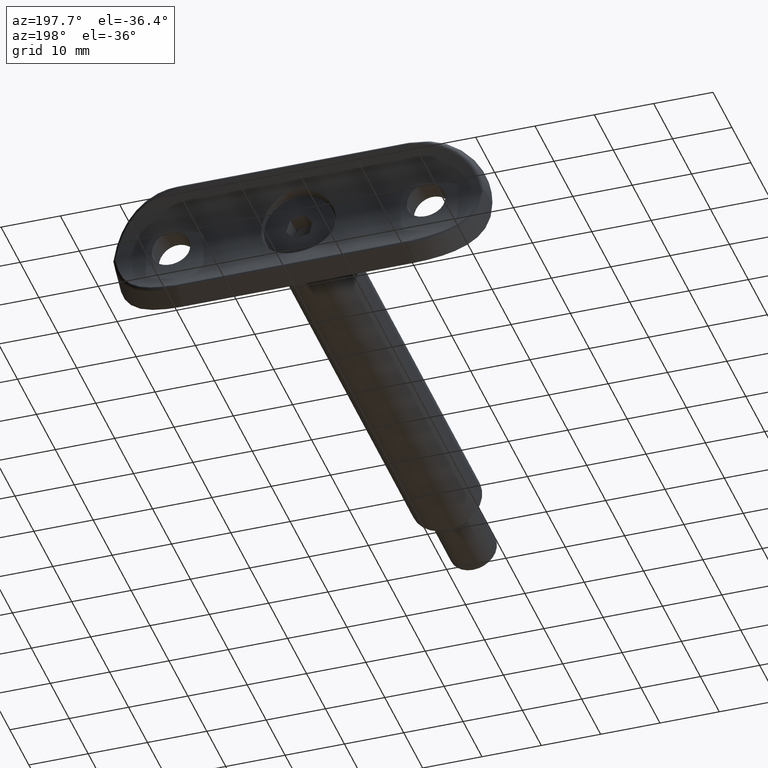
[diagram: clean part render]
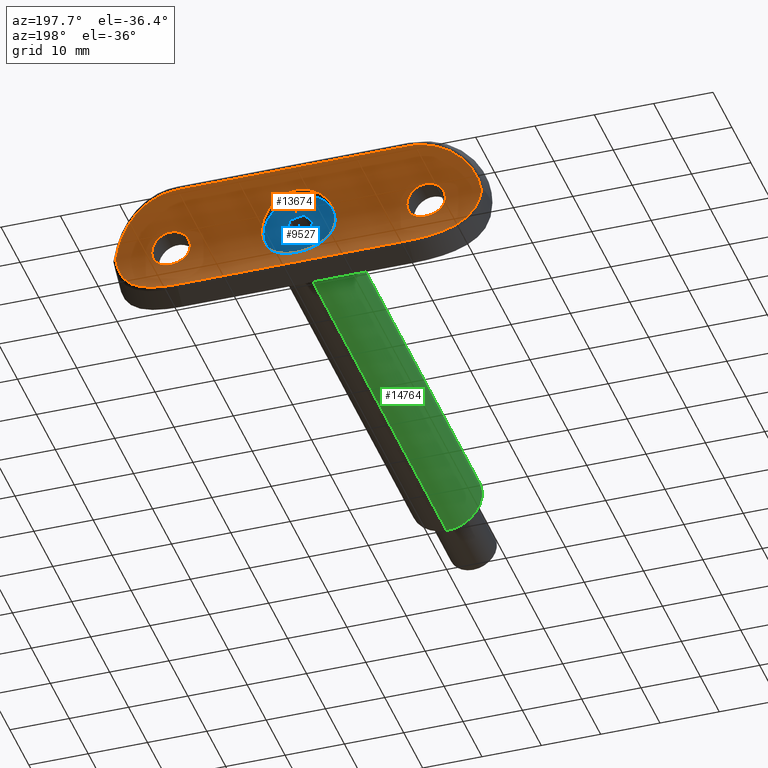
[diagram: same view with three faces highlighted in distinct colors, each labeled with its STEP entity id]
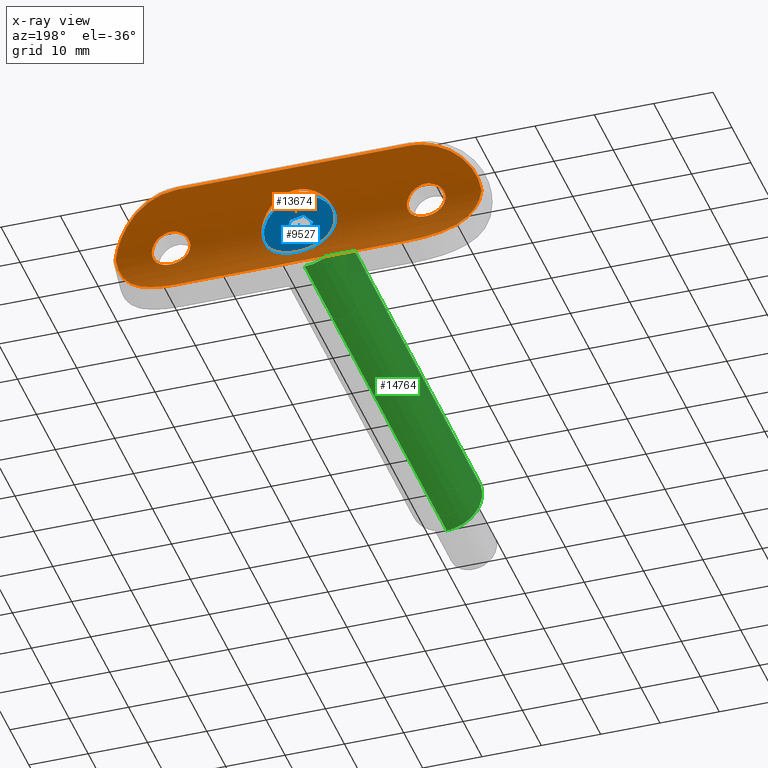
[diagram: x-ray of the same camera — body ghosted, the three highlighted faces saturated]
A machine part, auxiliary view with three faces highlighted in distinct colors.
The next image is the same camera in x-ray (body ghosted, the three faces saturated) — at least one of them is partly hidden behind the body in this view.
Their STEP definitions:

[orange] entity #13674 — the highlighted cylindrical surface (partial cylindrical patch) has radius 16.85 mm, axis along (1, -0, -0).
#64 = VERTEX_POINT ( 'NONE', #11238 ) ;
#89 = ORIENTED_EDGE ( 'NONE', *, *, #6962, .T. ) ;
#99 = CARTESIAN_POINT ( 'NONE',  ( -6.208474807560699000, 1.185235645790027500, 0.8279146384423928800 ) ) ;
#143 = CARTESIAN_POINT ( 'NONE',  ( -2.921070221033972300, 0.2549198398042866700, 22.94049291644473600 ) ) ;
#147 = CARTESIAN_POINT ( 'NONE',  ( -0.4237194425279188200, 0.004012198503904936700, -18.27060457569355400 ) ) ;
#149 = CARTESIAN_POINT ( 'NONE',  ( -6.250162533688483200, 1.202061850413230500, 0.4094160897852776600 ) ) ;
#193 = CARTESIAN_POINT ( 'NONE',  ( -3.146563842919865000, 0.2963476701418182900, -22.34064852401096600 ) ) ;
#225 = CARTESIAN_POINT ( 'NONE',  ( -8.378594580731062900, 2.226614987366911900, -24.83525098918113000 ) ) ;
#302 = VERTEX_POINT ( 'NONE', #7857 ) ;
#340 = CARTESIAN_POINT ( 'NONE',  ( -2.782308011602136600, 0.2268783624673865700, -5.611608479088758400 ) ) ;
#359 = CARTESIAN_POINT ( 'NONE',  ( 1.049670400899245700, 0.03156988072076803700, 24.58318820548387500 ) ) ;
#379 = CARTESIAN_POINT ( 'NONE',  ( -7.194680652232967200, 1.611533839192660400, 26.84993409781857600 ) ) ;
#403 = CARTESIAN_POINT ( 'NONE',  ( 2.146836638154671300, 0.1366263006822954500, 19.05066192131706500 ) ) ;
#422 = CARTESIAN_POINT ( 'NONE',  ( 4.518421924977071800, 0.6055062036309585300, -29.32728971149957100 ) ) ;
#479 = CARTESIAN_POINT ( 'NONE',  ( -5.088102286212711400, 0.7773996218996572800, 28.94991674319915400 ) ) ;
#500 = CARTESIAN_POINT ( 'NONE',  ( 7.656540450635650200E-016, 4.602082246478382500E-015, 6.250000000000000000 ) ) ;
#503 = CARTESIAN_POINT ( 'NONE',  ( 4.707216360516474300, 0.6681555376666309400, -4.131306735991997500 ) ) ;
#561 = CARTESIAN_POINT ( 'NONE',  ( 6.087749088909297300, 1.138103213971423800, -1.429792767508170500 ) ) ;
#610 = CARTESIAN_POINT ( 'NONE',  ( 6.036683979326183700, 1.118341300181738800, -1.631936828369501700 ) ) ;
#611 = EDGE_CURVE ( 'NONE', #10769, #302, #6934, .T. ) ;
#710 = CARTESIAN_POINT ( 'NONE',  ( 6.047193852532765300, 1.122271035008926400, 1.631705582103279100 ) ) ;
#719 = CARTESIAN_POINT ( 'NONE',  ( 7.997892245019760100E-016, 4.778640968277357800E-015, -6.250000000000000000 ) ) ;
#918 = B_SPLINE_CURVE_WITH_KNOTS ( 'NONE', 3,
 ( #4861, #1364, #3732, #8257, #11676, #12854, #1265, #11831, #8453, #14039, #6091, #3783, #13054, #6131, #12906, #5950, #5999, #7097, #7138, #99, #149, #1311, #6235, #4023, #11982, #1606, #6183, #9628, #12028, #13302, #3831, #14283, #9777, #2801, #3875, #7326, #340, #6279, #2751, #3922, #10931, #5008, #10786, #3973 ),
 .UNSPECIFIED., .F., .F.,
 ( 4, 2, 2, 2, 2, 2, 2, 2, 2, 2, 2, 2, 2, 2, 2, 2, 2, 2, 2, 2, 2, 4 ),
 ( 0.01971817941869424100, 0.02033424098713439200, 0.02095030255557454500, 0.02218242569245484900, 0.02341454882933515300, 0.02464667196621545700, 0.02587879510309576100, 0.02649485667153591100, 0.02711091823997606500, 0.02834304137685636500, 0.02957516451373667200, 0.03080728765061697300, 0.03142334921905712300, 0.03203941078749728000, 0.03265547235593743000, 0.03327153392437758000, 0.03450365706125788100, 0.03573578019813818100, 0.03696790333501848200, 0.03758396490345863200, 0.03820002647189878200, 0.03943214960877908200 ),
 .UNSPECIFIED. ) ;
#983 = CARTESIAN_POINT ( 'NONE',  ( 1.983235862894686500, 0.1161858091227481700, -18.91658847300226000 ) ) ;
#1015 = CARTESIAN_POINT ( 'NONE',  ( 5.088102286212706100, 0.7773996218996565000, 28.94991674319915000 ) ) ;
#1034 = CARTESIAN_POINT ( 'NONE',  ( 1.048385766230273600, 0.03149226902118848500, -18.41639367807252000 ) ) ;
#1081 = CARTESIAN_POINT ( 'NONE',  ( 2.449063118649708000, 0.1782317133173334200, -19.35284969890806300 ) ) ;
#1155 = CARTESIAN_POINT ( 'NONE',  ( -1.053215275238733800, 0.03180657498034843200, 24.58188754262609900 ) ) ;
#1261 = CARTESIAN_POINT ( 'NONE',  ( -2.585354106957339100, 0.1990918401650367000, -23.48082279583531200 ) ) ;
#1265 = CARTESIAN_POINT ( 'NONE',  ( -2.027231642494855100, 0.1180425330737968300, 5.926231317118172200 ) ) ;
#1297 = CARTESIAN_POINT ( 'NONE',  ( 1.334088218186776600E-014, 4.703196761685432300E-015, -30.84717079002204800 ) ) ;
#1304 = CARTESIAN_POINT ( 'NONE',  ( -0.8472009723319841000, 0.02000263995801098200, 24.64491786416992600 ) ) ;
#1311 = CARTESIAN_POINT ( 'NONE',  ( -6.249836487234472500, 1.201931623562961600, -0.4143635057904625500 ) ) ;
#1361 = CARTESIAN_POINT ( 'NONE',  ( -3.082926604103467700, 0.2842220926113287500, -20.44946489675437500 ) ) ;
#1364 = CARTESIAN_POINT ( 'NONE',  ( -0.2052994920901139700, 3.713974775914088400E-015, 6.249999999999999100 ) ) ;
#1399 = DIRECTION ( 'NONE',  ( -0.0000000000000000000, -0.0000000000000000000, -1.000000000000000000 ) ) ;
#1403 = CARTESIAN_POINT ( 'NONE',  ( -9.390755499543006500, 2.858910488688067200, -20.88376216912642700 ) ) ;
#1418 = CARTESIAN_POINT ( 'NONE',  ( -0.2123273452876281700, 1.843408391021373700E-015, -18.24999999999999600 ) ) ;
#1423 = CARTESIAN_POINT ( 'NONE',  ( -9.441128890499024700, 2.893367695859272900, -19.50000000000000000 ) ) ;
#1434 = CARTESIAN_POINT ( 'NONE',  ( 2.582499226653275100, 0.1986432690838975700, 23.48465118164262900 ) ) ;
#1459 = CARTESIAN_POINT ( 'NONE',  ( -2.821407994228275500, 0.2374609004004292800, -23.12707459477639900 ) ) ;
#1480 = CARTESIAN_POINT ( 'NONE',  ( 2.920699140044152200, 0.2548558248108060400, 22.94110877731811000 ) ) ;
#1493 = CARTESIAN_POINT ( 'NONE',  ( -3.323786737820734900, 0.3196594979452152000, -29.95339368198925100 ) ) ;
#1543 = CARTESIAN_POINT ( 'NONE',  ( 1.704901066415767800, 0.08317899172538814600, -30.50770133067765100 ) ) ;
#1575 = CARTESIAN_POINT ( 'NONE',  ( 3.145579254952806500, 0.2961597375527262300, 20.65555736896794800 ) ) ;
#1594 = CARTESIAN_POINT ( 'NONE',  ( 0.3456293382778021800, 2.601661697491581100E-015, -30.79959470430785700 ) ) ;
#1606 = CARTESIAN_POINT ( 'NONE',  ( -5.916111327363486400, 1.072602829246070800, -2.025909838344072800 ) ) ;
#1627 = CARTESIAN_POINT ( 'NONE',  ( 3.250082532967421700, 0.3164140751010345900, 21.28873162966797100 ) ) ;
#1641 = CARTESIAN_POINT ( 'NONE',  ( 3.980098594385254500E-016, 4.275631695863335800E-015, 18.25000000000000000 ) ) ;
#1670 = DIRECTION ( 'NONE',  ( -1.000000000000000000, 0.0000000000000000000, 0.0000000000000000000 ) ) ;
#1673 = CARTESIAN_POINT ( 'NONE',  ( 2.784900210101034700, 0.2273498565155063200, -5.610203054590016300 ) ) ;
#1725 = CARTESIAN_POINT ( 'NONE',  ( 5.927818033916425500, 1.076224761074669600, 2.023264345631290000 ) ) ;
#1784 = CARTESIAN_POINT ( 'NONE',  ( 5.916380749740803000, 1.072703725355302700, -2.025144464510761000 ) ) ;
#1836 = CARTESIAN_POINT ( 'NONE',  ( 4.129335621662694900, 0.5130105781612956900, -4.696008726409268700 ) ) ;
#1983 = VERTEX_POINT ( 'NONE', #2278 ) ;
#2030 = CARTESIAN_POINT ( 'NONE',  ( -2.446630481080480600, 0.1778860398142903500, 19.35026369552961300 ) ) ;
#2074 = CARTESIAN_POINT ( 'NONE',  ( 3.980098594385254500E-016, 4.275631695863335800E-015, 18.25000000000000000 ) ) ;
#2135 = CARTESIAN_POINT ( 'NONE',  ( -0.2123273452876290900, 5.106655759877770000E-015, 18.25000000000000400 ) ) ;
#2193 = VERTEX_POINT ( 'NONE', #9243 ) ;
#2197 = CARTESIAN_POINT ( 'NONE',  ( 6.573486520757321600, 1.328437660848534000, 27.63102504643977000 ) ) ;
#2206 = EDGE_CURVE ( 'NONE', #1983, #12257, #3295, .T. ) ;
#2213 = CARTESIAN_POINT ( 'NONE',  ( 2.920699140044152700, 0.2548558248108046000, -22.94110877731811000 ) ) ;
#2261 = CARTESIAN_POINT ( 'NONE',  ( 2.584018455900052300, 0.1988880537411806000, -19.51756294124301400 ) ) ;
#2278 = CARTESIAN_POINT ( 'NONE',  ( -3.042043628894920000E-015, 3.755531606105718100E-015, 30.84717079002204800 ) ) ;
#2284 = CARTESIAN_POINT ( 'NONE',  ( -3.082926604103469500, 0.2842220926113293600, 20.44946489675438200 ) ) ;
#2334 = CARTESIAN_POINT ( 'NONE',  ( -0.2152229943715045200, 3.442977172351917300E-015, 24.74999999999999600 ) ) ;
#2349 = VERTEX_POINT ( 'NONE', #1423 ) ;
#2486 = CARTESIAN_POINT ( 'NONE',  ( -2.146901082311376600, 0.1366460470933101900, -19.05088125390369700 ) ) ;
#2536 = CARTESIAN_POINT ( 'NONE',  ( -2.448882033043938500, 0.1782218465160917100, -23.64711643842226300 ) ) ;
#2573 = CARTESIAN_POINT ( 'NONE',  ( -9.441128890499028300, 2.893367695859272000, 31.50000000000000000 ) ) ;
#2581 = CARTESIAN_POINT ( 'NONE',  ( -8.937682158469106900, 2.565229096247158700, 23.23577741699182700 ) ) ;
#2587 = CARTESIAN_POINT ( 'NONE',  ( -1.983641479765679400, 0.1162216720010653000, -18.91678980406262400 ) ) ;
#2642 = EDGE_LOOP ( 'NONE', ( #5595, #5018 ) ) ;
#2661 = CARTESIAN_POINT ( 'NONE',  ( 1.983235862894689100, 0.1161858091227483700, 18.91658847300226000 ) ) ;
#2697 = EDGE_CURVE ( 'NONE', #2193, #1983, #10996, .T. ) ;
#2722 = ORIENTED_EDGE ( 'NONE', *, *, #5205, .T. ) ;
#2745 = CARTESIAN_POINT ( 'NONE',  ( -1.704901066415757800, 0.08317899172538766000, 30.50770133067765500 ) ) ;
#2751 = CARTESIAN_POINT ( 'NONE',  ( -2.017783046553296000, 0.1200852643657183100, -5.918882374071625200 ) ) ;
#2785 = CARTESIAN_POINT ( 'NONE',  ( 9.026933551425223400, 2.621681504256944400, -22.90300639677785800 ) ) ;
#2793 = B_SPLINE_CURVE_WITH_KNOTS ( 'NONE', 3,
 ( #9709, #4996, #14469, #5200, #10864, #2785, #14267, #10820, #11914, #6223, #12016, #3960, #8642, #9659, #7362, #8591, #422, #8539, #13188, #1543, #11966, #7317, #1594, #9765 ),
 .UNSPECIFIED., .F., .F.,
 ( 4, 2, 2, 2, 2, 2, 2, 2, 2, 2, 2, 4 ),
 ( 0.0000000000000000000, 0.002062967759200297400, 0.003094451638800451600, 0.004125935518400606100, 0.006188903277600904900, 0.007220387157201056800, 0.008251871036801208800, 0.01031483879600151100, 0.01237780655520181000, 0.01444077431440211200, 0.01547225819400226300, 0.01650374207360241400 ),
 .UNSPECIFIED. ) ;
#2801 = CARTESIAN_POINT ( 'NONE',  ( -4.131741836723522400, 0.5117185280038941700, -4.706959048184010000 ) ) ;
#2804 = ORIENTED_EDGE ( 'NONE', *, *, #9878, .T. ) ;
#2811 = ORIENTED_EDGE ( 'NONE', *, *, #5395, .F. ) ;
#2822 = CARTESIAN_POINT ( 'NONE',  ( 3.136203337984735800, 0.2934183955299931600, 5.410060750528642400 ) ) ;
#2926 = CARTESIAN_POINT ( 'NONE',  ( 4.130855323560408200, 0.5114908614198394600, 4.707754619127245900 ) ) ;
#2972 = CARTESIAN_POINT ( 'NONE',  ( 2.218277009078186300, 0.1455645454800997000, -5.846677174642287900 ) ) ;
#3020 = CARTESIAN_POINT ( 'NONE',  ( 6.208666647140428400, 1.185311354801357400, 0.8267255055114216500 ) ) ;
#3253 = CARTESIAN_POINT ( 'NONE',  ( 3.229188161827141600, 0.3122656646793284800, -21.92502909074561400 ) ) ;
#3295 = B_SPLINE_CURVE_WITH_KNOTS ( 'NONE', 3,
 ( #13890, #6955, #5590, #8016, #8108, #13681, #10401, #13735, #1015, #9194, #2197, #10348, #3396, #11484, #13842, #6907, #3445, #13938, #3543, #5955, #8261, #11635, #9395, #9538 ),
 .UNSPECIFIED., .F., .F.,
 ( 4, 2, 2, 2, 2, 2, 2, 2, 2, 2, 2, 4 ),
 ( 0.0000000000000000000, 0.001043312271240549400, 0.002086624542481098700, 0.004173249084962197400, 0.006259873627443297800, 0.008346498169924398300, 0.009389810441164946800, 0.01043312271240549700, 0.01251974725488659600, 0.01356305952612714400, 0.01460637179736769400, 0.01669299633984880300 ),
 .UNSPECIFIED. ) ;
#3312 = CARTESIAN_POINT ( 'NONE',  ( 3.145563945726086400, 0.2961563196495979300, -22.34482742368648200 ) ) ;
#3333 = CARTESIAN_POINT ( 'NONE',  ( -1.983641479765678100, 0.1162216720010650200, 18.91678980406262800 ) ) ;
#3385 = CARTESIAN_POINT ( 'NONE',  ( -1.048835084218625600, 0.03153038519526391700, 18.41661149994736500 ) ) ;
#3396 = CARTESIAN_POINT ( 'NONE',  ( 7.390793985087869400, 1.706034407769336600, 26.57572169385642300 ) ) ;
#3412 = CARTESIAN_POINT ( 'NONE',  ( 0.2152782032683116500, 3.495757912877700100E-015, -24.74999999999998900 ) ) ;
#3433 = CARTESIAN_POINT ( 'NONE',  ( -0.4276890220517249900, 0.004120897769774846400, 24.72882950313450900 ) ) ;
#3445 = CARTESIAN_POINT ( 'NONE',  ( 8.631763027774574900, 2.376833947390418100, 24.21320611330039400 ) ) ;
#3522 = EDGE_LOOP ( 'NONE', ( #2722, #9786 ) ) ;
#3533 = CARTESIAN_POINT ( 'NONE',  ( -8.631763027774578500, 2.376833947390416800, 24.21320611330039400 ) ) ;
#3543 = CARTESIAN_POINT ( 'NONE',  ( 9.026933551425221600, 2.621681504256943000, 22.90300639677786200 ) ) ;
#3585 = CARTESIAN_POINT ( 'NONE',  ( -1.639419273092649300, 0.07536514744673933300, 24.33795303212947700 ) ) ;
#3671 = CARTESIAN_POINT ( 'NONE',  ( -9.026933551425226900, 2.621681504256942100, -22.90300639677786900 ) ) ;
#3716 = CARTESIAN_POINT ( 'NONE',  ( -1.367225302750650000, 0.05211738540097970300, -30.59434416446330100 ) ) ;
#3728 = CARTESIAN_POINT ( 'NONE',  ( -0.2152229943715044900, 3.442977172351917300E-015, -24.74999999999999300 ) ) ;
#3732 = CARTESIAN_POINT ( 'NONE',  ( -0.4106866204810056300, 0.003750759248861804600, 6.239909560735750200 ) ) ;
#3780 = CARTESIAN_POINT ( 'NONE',  ( -3.228493774346178600, 0.3121308101101246100, -21.07077233454705800 ) ) ;
#3783 = CARTESIAN_POINT ( 'NONE',  ( -4.711075227352902000, 0.6692139400214722800, 4.127382108038009500 ) ) ;
#3803 = CARTESIAN_POINT ( 'NONE',  ( 3.145563945726088200, 0.2961563196495985400, 22.34482742368648200 ) ) ;
#3823 = VERTEX_POINT ( 'NONE', #9249 ) ;
#3825 = CARTESIAN_POINT ( 'NONE',  ( -8.378594580731057600, 2.226614987366916800, 24.83525098918111600 ) ) ;
#3831 = CARTESIAN_POINT ( 'NONE',  ( -5.302508391472747100, 0.8556213652968638300, -3.314724427457414800 ) ) ;
#3868 = CARTESIAN_POINT ( 'NONE',  ( -7.752703595076257100, 1.888077778722113500, 26.01314792266511600 ) ) ;
#3875 = CARTESIAN_POINT ( 'NONE',  ( -3.813043210740915800, 0.4334959478249322300, -4.968636500825002000 ) ) ;
#3893 = CARTESIAN_POINT ( 'NONE',  ( 2.820078761738545200, 0.2372296406204138200, 23.12950862104238000 ) ) ;
#3916 = LINE ( 'NONE', #7357, #14463 ) ;
#3922 = CARTESIAN_POINT ( 'NONE',  ( -1.625151884774484800, 0.07739206813785574900, -6.038501331660661700 ) ) ;
#3944 = CARTESIAN_POINT ( 'NONE',  ( 3.229188161827143000, 0.3122656646793293100, 21.92502909074561400 ) ) ;
#3960 = CARTESIAN_POINT ( 'NONE',  ( 7.390793985087874800, 1.706034407769338100, -26.57572169385642600 ) ) ;
#3973 = CARTESIAN_POINT ( 'NONE',  ( 7.997892245019760100E-016, 4.778640968277357800E-015, -6.250000000000000000 ) ) ;
#3990 = CARTESIAN_POINT ( 'NONE',  ( 1.636188232889933800, 0.07468825343181452500, 6.046225584865449100 ) ) ;
#4023 = CARTESIAN_POINT ( 'NONE',  ( -6.087418667224692800, 1.137974736567361100, -1.431290071125539400 ) ) ;
#4085 = CARTESIAN_POINT ( 'NONE',  ( 1.027230917890327800, 0.03010937391894012700, 6.168481221537653900 ) ) ;
#4132 = DIRECTION ( 'NONE',  ( -0.0000000000000000000, -0.0000000000000000000, -1.000000000000000000 ) ) ;
#4190 = CARTESIAN_POINT ( 'NONE',  ( 5.610519621648258200, 0.9605984534829457000, 2.784725270224604800 ) ) ;
#4440 = CARTESIAN_POINT ( 'NONE',  ( -2.819027516698466900, 0.2370592656101540600, 19.86893045365901900 ) ) ;
#4471 = CARTESIAN_POINT ( 'NONE',  ( 3.249916974005196300, 0.3163815312802751900, -21.71380004086898200 ) ) ;
#4528 = CARTESIAN_POINT ( 'NONE',  ( 1.631655667721750200, 0.07825406689369092400, -18.68132311399693900 ) ) ;
#4632 = CARTESIAN_POINT ( 'NONE',  ( 1.334088218186776600E-014, 4.703196761685432300E-015, -30.84717079002204800 ) ) ;
#4756 = CARTESIAN_POINT ( 'NONE',  ( 3.980098594322145600E-016, 4.466214108995553400E-015, -18.25000000000000000 ) ) ;
#4845 = CARTESIAN_POINT ( 'NONE',  ( -9.178189490185198800, 2.718778742075953900, -22.23567650817570800 ) ) ;
#4861 = CARTESIAN_POINT ( 'NONE',  ( 7.656540450635650200E-016, 4.602082246478382500E-015, 6.250000000000000000 ) ) ;
#4901 = CARTESIAN_POINT ( 'NONE',  ( -4.518421924977055000, 0.6055062036309523100, -29.32728971149955700 ) ) ;
#4907 = CARTESIAN_POINT ( 'NONE',  ( -9.390755499543004700, 2.858910488688068100, 20.88376216912642400 ) ) ;
#4932 = CARTESIAN_POINT ( 'NONE',  ( 1.441339477771321300, 0.06060288391372337800, 18.57933549114534000 ) ) ;
#4956 = CARTESIAN_POINT ( 'NONE',  ( -1.367225302750667100, 0.05211738540098165300, 30.59434416446331500 ) ) ;
#4996 = CARTESIAN_POINT ( 'NONE',  ( 9.441128890499026500, 2.893367695859275100, -20.19690007560872000 ) ) ;
#5002 = CARTESIAN_POINT ( 'NONE',  ( -6.112227243406868700, 1.138286346994826300, 28.10283433195984100 ) ) ;
#5008 = CARTESIAN_POINT ( 'NONE',  ( -0.8258026788817315300, 0.01545375570324189300, -6.208665078655594800 ) ) ;
#5018 = ORIENTED_EDGE ( 'NONE', *, *, #10217, .T. ) ;
#5046 = CARTESIAN_POINT ( 'NONE',  ( -6.112227243406862500, 1.138286346994821700, -28.10283433195984400 ) ) ;
#5128 = CARTESIAN_POINT ( 'NONE',  ( 3.980098594385254500E-016, 4.275631695863335800E-015, 18.25000000000000000 ) ) ;
#5184 = CARTESIAN_POINT ( 'NONE',  ( 3.312521721112802600, 0.3279095474289453500, 5.303868707929096300 ) ) ;
#5200 = CARTESIAN_POINT ( 'NONE',  ( 9.240722277303365900, 2.759749986775101400, -21.89952579968479500 ) ) ;
#5205 = EDGE_CURVE ( 'NONE', #64, #3823, #10070, .T. ) ;
#5234 = CARTESIAN_POINT ( 'NONE',  ( 6.249771679224513900, 1.201905738477076800, -0.4153386595776358800 ) ) ;
#5378 = CARTESIAN_POINT ( 'NONE',  ( 3.818999154492371600, 0.4348594961504608800, 4.964175576383338400 ) ) ;
#5395 = EDGE_CURVE ( 'NONE', #302, #10769, #12569, .T. ) ;
#5418 = EDGE_CURVE ( 'NONE', #10822, #6594, #14167, .T. ) ;
#5590 = CARTESIAN_POINT ( 'NONE',  ( 0.6882995487741748700, 0.01062919543943042900, 30.74005674687350300 ) ) ;
#5595 = ORIENTED_EDGE ( 'NONE', *, *, #5418, .T. ) ;
#5607 = CARTESIAN_POINT ( 'NONE',  ( 0.8429591315247496600, 0.01981086720713737300, -24.64593740877975500 ) ) ;
#5756 = CARTESIAN_POINT ( 'NONE',  ( 2.582499226653275100, 0.1986432690838977100, -23.48465118164262900 ) ) ;
#5891 = CARTESIAN_POINT ( 'NONE',  ( -2.821407994228280400, 0.2374609004004334100, 23.12707459477639600 ) ) ;
#5941 = CARTESIAN_POINT ( 'NONE',  ( -3.250112212707315900, 0.3164199092273574700, 21.71289879331213900 ) ) ;
#5950 = CARTESIAN_POINT ( 'NONE',  ( -5.603164478941546500, 0.9585722609550342300, 2.776450904045090000 ) ) ;
#5955 = CARTESIAN_POINT ( 'NONE',  ( 9.178189490185197000, 2.718778742075956600, 22.23567650817570800 ) ) ;
#5996 = CARTESIAN_POINT ( 'NONE',  ( -0.4276890220517239900, 0.004120897769774937500, -24.72882950313450200 ) ) ;
#5999 = CARTESIAN_POINT ( 'NONE',  ( -5.691955210544504600, 0.9902659451496679300, 2.589622749943053300 ) ) ;
#6016 = CARTESIAN_POINT ( 'NONE',  ( 9.441128890499024700, 2.893367695859273800, -19.50000000000000400 ) ) ;
#6032 = CARTESIAN_POINT ( 'NONE',  ( -0.3456293382777763700, 4.388760044040271000E-015, -30.79959470430785700 ) ) ;
#6041 = CARTESIAN_POINT ( 'NONE',  ( -9.441128890499028300, 2.893367695859272400, 19.50000000000000000 ) ) ;
#6086 = CARTESIAN_POINT ( 'NONE',  ( -9.178189490185198800, 2.718778742075953500, 22.23567650817570400 ) ) ;
#6091 = CARTESIAN_POINT ( 'NONE',  ( -4.133501323962614800, 0.5121227167856059500, 4.705707137968723000 ) ) ;
#6114 = DIRECTION ( 'NONE',  ( 0.0000000000000000000, 0.0000000000000000000, 1.000000000000000000 ) ) ;
#6131 = CARTESIAN_POINT ( 'NONE',  ( -5.305557136130755900, 0.8566405411699651300, 3.309748677244134900 ) ) ;
#6134 = EDGE_CURVE ( 'NONE', #10669, #2349, #6549, .T. ) ;
#6183 = CARTESIAN_POINT ( 'NONE',  ( -5.846723729835764200, 1.046668245745590300, -2.218074489118605700 ) ) ;
#6222 = CARTESIAN_POINT ( 'NONE',  ( -6.573486520757317200, 1.328437660848532700, -27.63102504643977400 ) ) ;
#6223 = CARTESIAN_POINT ( 'NONE',  ( 7.919200436628651500, 1.975888310944755100, -25.72421893530745900 ) ) ;
#6235 = CARTESIAN_POINT ( 'NONE',  ( -6.209356294297511300, 1.185581400966303700, -0.8230574716146608100 ) ) ;
#6279 = CARTESIAN_POINT ( 'NONE',  ( -2.213249965840534000, 0.1448884379476727800, -5.848610645889196200 ) ) ;
#6349 = CARTESIAN_POINT ( 'NONE',  ( 2.023216522064035700, 0.1207291602827784400, -5.917066336990328200 ) ) ;
#6494 = VERTEX_POINT ( 'NONE', #6016 ) ;
#6502 = CARTESIAN_POINT ( 'NONE',  ( 3.650108747968118500, 0.3991914512522775100, -5.077469435536840200 ) ) ;
#6547 = CARTESIAN_POINT ( 'NONE',  ( 2.774927731756537100, 0.2290511135437955600, 5.603954388208887100 ) ) ;
#6549 = B_SPLINE_CURVE_WITH_KNOTS ( 'NONE', 3,
 ( #1297, #6032, #10617, #3716, #13137, #12943, #1493, #4901, #14119, #5046, #6222, #8296, #8400, #7128, #14219, #225, #14266, #10819, #3671, #4845, #12989, #1403, #7171, #10721 ),
 .UNSPECIFIED., .F., .F.,
 ( 4, 2, 2, 2, 2, 2, 2, 2, 2, 2, 2, 4 ),
 ( 0.0000000000000000000, 0.001043312271240549800, 0.002086624542481099600, 0.004173249084962200900, 0.006259873627443301300, 0.008346498169924403500, 0.009389810441164952000, 0.01043312271240550400, 0.01251974725488660100, 0.01356305952612715300, 0.01460637179736770100, 0.01669299633984881400 ),
 .UNSPECIFIED. ) ;
#6594 = VERTEX_POINT ( 'NONE', #500 ) ;
#6630 = LINE ( 'NONE', #2573, #12223 ) ;
#6657 = FACE_BOUND ( 'NONE', #8600, .T. ) ;
#6682 = EDGE_LOOP ( 'NONE', ( #8680, #14229, #12799, #8739, #89, #2804 ) ) ;
#6876 = CARTESIAN_POINT ( 'NONE',  ( 2.149165446315895300, 0.1369404172337502500, -23.94710189695196300 ) ) ;
#6907 = CARTESIAN_POINT ( 'NONE',  ( 8.378594580731055800, 2.226614987366914100, 24.83525098918111600 ) ) ;
#6934 = B_SPLINE_CURVE_WITH_KNOTS ( 'NONE', 3,
 ( #2074, #2135, #10338, #10234, #3385, #11374, #14958, #3333, #9029, #2030, #11323, #4440, #13884, #2284, #14081, #9284, #7136, #5941, #10439, #10539, #9383, #143, #5891, #8152, #12700, #8306, #3585, #1155, #1304, #3433, #2334, #8249 ),
 .UNSPECIFIED., .F., .F.,
 ( 4, 2, 2, 2, 2, 2, 2, 2, 2, 2, 2, 2, 2, 2, 2, 4 ),
 ( 0.01018487875220696600, 0.01082127042733996500, 0.01145766210247296500, 0.01209405377760596300, 0.01273044545273896100, 0.01336683712787196100, 0.01400322880300495900, 0.01463962047813795900, 0.01527601215327095900, 0.01591240382840395900, 0.01654879550353696000, 0.01718518717866995800, 0.01782157885380295700, 0.01909436220406896700, 0.01973075387920197200, 0.02036714555433497300 ),
 .UNSPECIFIED. ) ;
#6955 = CARTESIAN_POINT ( 'NONE',  ( 0.3456293382777864700, 3.735415297391464500E-015, 30.79959470430786400 ) ) ;
#6962 = EDGE_CURVE ( 'NONE', #12257, #6494, #3916, .T. ) ;
#6973 = CARTESIAN_POINT ( 'NONE',  ( 1.443049595592233800, 0.06074726224350655800, -24.41983994863073800 ) ) ;
#7097 = CARTESIAN_POINT ( 'NONE',  ( -5.928084701011513000, 1.076338870911110600, 2.021957517135963800 ) ) ;
#7128 = CARTESIAN_POINT ( 'NONE',  ( -7.752703595076255300, 1.888077778722110600, -26.01314792266513000 ) ) ;
#7136 = CARTESIAN_POINT ( 'NONE',  ( -3.249886891623715400, 0.3163756180069491900, 21.28368892068283100 ) ) ;
#7138 = CARTESIAN_POINT ( 'NONE',  ( -6.047110882185940300, 1.122239457329228000, 1.631886044799525600 ) ) ;
#7160 = CARTESIAN_POINT ( 'NONE',  ( -1.040937877836706200E-016, 3.954882813776429800E-015, 24.74999999999999600 ) ) ;
#7171 = CARTESIAN_POINT ( 'NONE',  ( -9.441128890499028300, 2.893367695859272400, -20.19690007560871700 ) ) ;
#7181 = CARTESIAN_POINT ( 'NONE',  ( -2.446630481080478000, 0.1778860398142866900, -19.35026369552961300 ) ) ;
#7273 = CARTESIAN_POINT ( 'NONE',  ( -2.001016787975085500, 0.1165224218861982000, -24.09556557649313300 ) ) ;
#7299 = CARTESIAN_POINT ( 'NONE',  ( 0.2123818113939571500, 5.179394714223232200E-015, 18.25000000000000000 ) ) ;
#7317 = CARTESIAN_POINT ( 'NONE',  ( 0.6882995487741899700, 0.01062919543943080700, -30.74005674687349900 ) ) ;
#7326 = CARTESIAN_POINT ( 'NONE',  ( -3.139651692816615800, 0.2915130199087465600, -5.419338931281346000 ) ) ;
#7344 = CARTESIAN_POINT ( 'NONE',  ( 1.443049595592232400, 0.06074726224350642000, 24.41983994863073800 ) ) ;
#7357 = CARTESIAN_POINT ( 'NONE',  ( 9.441128890499026500, 2.893367695859272000, 31.50000000000000000 ) ) ;
#7362 = CARTESIAN_POINT ( 'NONE',  ( 6.112227243406869600, 1.138286346994830100, -28.10283433195983700 ) ) ;
#7368 = CARTESIAN_POINT ( 'NONE',  ( -6.573486520757322500, 1.328437660848532400, 27.63102504643977000 ) ) ;
#7395 = CARTESIAN_POINT ( 'NONE',  ( 3.084022282978944300, 0.2844274000123507800, 20.45271370822382600 ) ) ;
#7446 = CARTESIAN_POINT ( 'NONE',  ( 0.8429591315247494400, 0.01981086720713737300, 24.64593740877976600 ) ) ;
#7545 = CARTESIAN_POINT ( 'NONE',  ( 5.612455961069239100, 0.9613075566344072600, -2.779941545350277800 ) ) ;
#7602 = CARTESIAN_POINT ( 'NONE',  ( 0.4169718030340924800, 3.520057170552058600E-015, -6.250000000000000900 ) ) ;
#7643 = CARTESIAN_POINT ( 'NONE',  ( 0.4105989775874721600, 0.003752397472598141800, 6.239905014505976200 ) ) ;
#7857 = CARTESIAN_POINT ( 'NONE',  ( -1.040937877836706200E-016, 3.954882813776429800E-015, 24.74999999999999600 ) ) ;
#7930 = CARTESIAN_POINT ( 'NONE',  ( 1.441339477771322200, 0.06060288391372346100, -18.57933549114534300 ) ) ;
#8016 = CARTESIAN_POINT ( 'NONE',  ( 1.367225302750659300, 0.05211738540098079200, 30.59434416446331200 ) ) ;
#8033 = CARTESIAN_POINT ( 'NONE',  ( 2.448156607284309900, 0.1781134253215617100, -23.64796392798255600 ) ) ;
#8045 = EDGE_CURVE ( 'NONE', #2349, #2193, #6630, .T. ) ;
#8076 = CARTESIAN_POINT ( 'NONE',  ( 3.145579254952804800, 0.2961597375527259500, -20.65555736896794800 ) ) ;
#8108 = CARTESIAN_POINT ( 'NONE',  ( 1.704901066415754000, 0.08317899172538735500, 30.50770133067765900 ) ) ;
#8124 = CARTESIAN_POINT ( 'NONE',  ( 0.2123818113939569800, 1.923823581451330000E-015, -18.25000000000000000 ) ) ;
#8152 = CARTESIAN_POINT ( 'NONE',  ( -2.585354106957344000, 0.1990918401650410600, 23.48082279583530900 ) ) ;
#8249 = CARTESIAN_POINT ( 'NONE',  ( -1.040937877836706200E-016, 3.954882813776429800E-015, 24.74999999999999600 ) ) ;
#8253 = CARTESIAN_POINT ( 'NONE',  ( -3.249886891623713600, 0.3163756180069488600, -21.28368892068283500 ) ) ;
#8257 = CARTESIAN_POINT ( 'NONE',  ( -0.8216389274751880700, 0.01878832482319965600, 6.199197068916340900 ) ) ;
#8261 = CARTESIAN_POINT ( 'NONE',  ( 9.240722277303360600, 2.759749986775100500, 21.89952579968479500 ) ) ;
#8296 = CARTESIAN_POINT ( 'NONE',  ( -7.194680652232960900, 1.611533839192661000, -26.84993409781857900 ) ) ;
#8306 = CARTESIAN_POINT ( 'NONE',  ( -2.001016787975084600, 0.1165224218861978200, 24.09556557649312900 ) ) ;
#8309 = CARTESIAN_POINT ( 'NONE',  ( -1.629768385759161400, 0.07805838134314960200, -18.68013059780745200 ) ) ;
#8400 = CARTESIAN_POINT ( 'NONE',  ( -7.390793985087868600, 1.706034407769333000, -26.57572169385642600 ) ) ;
#8431 = CARTESIAN_POINT ( 'NONE',  ( 1.629541343782515300, 0.07804136284574649000, 24.31995501582956700 ) ) ;
#8449 = CARTESIAN_POINT ( 'NONE',  ( -2.694734062044984700, 0.2035948080676313600, 30.20712680308378100 ) ) ;
#8452 = CARTESIAN_POINT ( 'NONE',  ( -2.819027516698463700, 0.2370592656101573300, -19.86893045365900800 ) ) ;
#8453 = CARTESIAN_POINT ( 'NONE',  ( -3.147389272226401000, 0.2929814448623007100, 5.414878545323187400 ) ) ;
#8498 = CARTESIAN_POINT ( 'NONE',  ( -7.919200436628655000, 1.975888310944755600, 25.72421893530746200 ) ) ;
#8523 = CARTESIAN_POINT ( 'NONE',  ( 2.448156607284309900, 0.1781134253215615500, 23.64796392798255600 ) ) ;
#8539 = CARTESIAN_POINT ( 'NONE',  ( 3.323786737820753500, 0.3196594979452208100, -29.95339368198924700 ) ) ;
#8544 = CARTESIAN_POINT ( 'NONE',  ( -4.518421924977068300, 0.6055062036309584200, 29.32728971149956000 ) ) ;
#8574 = CARTESIAN_POINT ( 'NONE',  ( 1.631655667721753100, 0.07825406689369107700, 18.68132311399693900 ) ) ;
#8591 = CARTESIAN_POINT ( 'NONE',  ( 5.088102286212714100, 0.7773996218996611600, -28.94991674319915000 ) ) ;
#8600 = EDGE_LOOP ( 'NONE', ( #2811, #12534 ) ) ;
#8642 = CARTESIAN_POINT ( 'NONE',  ( 7.194680652232968000, 1.611533839192665000, -26.84993409781857200 ) ) ;
#8645 = FACE_BOUND ( 'NONE', #3522, .T. ) ;
#8673 = CARTESIAN_POINT ( 'NONE',  ( -2.063529856563290200E-015, 16.85000000000000100, 31.50000000000000000 ) ) ;
#8680 = ORIENTED_EDGE ( 'NONE', *, *, #6134, .T. ) ;
#8681 = CARTESIAN_POINT ( 'NONE',  ( 3.142586030423157000, 0.2920340573013631700, -5.417805091049878300 ) ) ;
#8733 = CARTESIAN_POINT ( 'NONE',  ( 6.209226602230768500, 1.185531820726416700, -0.8234016712930958300 ) ) ;
#8739 = ORIENTED_EDGE ( 'NONE', *, *, #2206, .T. ) ;
#8786 = CARTESIAN_POINT ( 'NONE',  ( 0.2053433266139237100, 3.815412853521036200E-015, 6.249999999999998200 ) ) ;
#9029 = CARTESIAN_POINT ( 'NONE',  ( -2.146901082311378800, 0.1366460470933136800, 19.05088125390369300 ) ) ;
#9115 = CARTESIAN_POINT ( 'NONE',  ( 3.084022282978942100, 0.2844274000123504500, -20.45271370822382600 ) ) ;
#9162 = CARTESIAN_POINT ( 'NONE',  ( 2.820078761738545200, 0.2372296406204138800, -23.12950862104238000 ) ) ;
#9194 = CARTESIAN_POINT ( 'NONE',  ( 6.112227243406864300, 1.138286346994825900, 28.10283433195983000 ) ) ;
#9213 = CARTESIAN_POINT ( 'NONE',  ( 3.980098594322145600E-016, 4.466214108995553400E-015, -18.25000000000000000 ) ) ;
#9243 = CARTESIAN_POINT ( 'NONE',  ( -9.441128890499028300, 2.893367695859272400, 19.50000000000000000 ) ) ;
#9249 = CARTESIAN_POINT ( 'NONE',  ( 3.980098594322145600E-016, 4.466214108995553400E-015, -18.25000000000000000 ) ) ;
#9262 = CARTESIAN_POINT ( 'NONE',  ( 2.920678573547287500, 0.2548493324889031200, -20.05859835962535000 ) ) ;
#9284 = CARTESIAN_POINT ( 'NONE',  ( -3.228493774346181700, 0.3121308101101247200, 21.07077233454705800 ) ) ;
#9383 = CARTESIAN_POINT ( 'NONE',  ( -3.083793188691174200, 0.2843863280313467800, 22.54780277147984400 ) ) ;
#9395 = CARTESIAN_POINT ( 'NONE',  ( 9.441128890499028300, 2.893367695859274200, 20.19690007560871700 ) ) ;
#9434 = CARTESIAN_POINT ( 'NONE',  ( -0.8472009723319824400, 0.02000263995801099300, -24.64491786416992600 ) ) ;
#9484 = CARTESIAN_POINT ( 'NONE',  ( -2.921070221033971800, 0.2549198398042866200, -22.94049291644473200 ) ) ;
#9529 = CARTESIAN_POINT ( 'NONE',  ( -9.441128890499026500, 2.893367695859272400, 20.19690007560871300 ) ) ;
#9535 = CARTESIAN_POINT ( 'NONE',  ( -2.583650268439075900, 0.1988298526906186500, -19.51705892793084000 ) ) ;
#9538 = CARTESIAN_POINT ( 'NONE',  ( 9.441128890499026500, 2.893367695859272900, 19.50000000000000000 ) ) ;
#9579 = CARTESIAN_POINT ( 'NONE',  ( -1.440065730834423100, 0.06050370294348662200, -18.57877587867328400 ) ) ;
#9598 = CARTESIAN_POINT ( 'NONE',  ( 0.8457604668145799500, 0.01994174447358674400, 18.35475909974436700 ) ) ;
#9626 = CARTESIAN_POINT ( 'NONE',  ( -1.053215275238734900, 0.03180657498034860500, -24.58188754262609200 ) ) ;
#9628 = CARTESIAN_POINT ( 'NONE',  ( -5.689806518046135700, 0.9894963921302248900, -2.594250296232643500 ) ) ;
#9641 = CARTESIAN_POINT ( 'NONE',  ( 2.449063118649710300, 0.1782317133173370300, 19.35284969890806300 ) ) ;
#9659 = CARTESIAN_POINT ( 'NONE',  ( 6.573486520757327000, 1.328437660848537500, -27.63102504643977400 ) ) ;
#9709 = CARTESIAN_POINT ( 'NONE',  ( 9.441128890499024700, 2.893367695859273800, -19.50000000000000400 ) ) ;
#9745 = CARTESIAN_POINT ( 'NONE',  ( 1.048385766230272200, 0.03149226902118836000, 18.41639367807252400 ) ) ;
#9765 = CARTESIAN_POINT ( 'NONE',  ( 1.334088218186776600E-014, 4.703196761685432300E-015, -30.84717079002204800 ) ) ;
#9777 = CARTESIAN_POINT ( 'NONE',  ( -4.705031786098293100, 0.6674968575529880400, -4.133936378128900900 ) ) ;
#9786 = ORIENTED_EDGE ( 'NONE', *, *, #13968, .T. ) ;
#9847 = CARTESIAN_POINT ( 'NONE',  ( 5.847058711973740100, 1.046793623209463900, -2.217140872014800500 ) ) ;
#9878 = EDGE_CURVE ( 'NONE', #6494, #10669, #2793, .T. ) ;
#9885 = CARTESIAN_POINT ( 'NONE',  ( 4.561106724640641400, 0.6283819521494234900, 4.277839438427212900 ) ) ;
#9936 = CARTESIAN_POINT ( 'NONE',  ( 5.420819465877825000, 0.8939776628516809000, -3.137683627322112500 ) ) ;
#9988 = CARTESIAN_POINT ( 'NONE',  ( 6.250226416274814200, 1.202087365873877800, 0.4084384774688081300 ) ) ;
#10054 = B_SPLINE_CURVE_WITH_KNOTS ( 'NONE', 3,
 ( #4756, #1418, #147, #13105, #10736, #9579, #8309, #2587, #2486, #7181, #9535, #8452, #12952, #1361, #14129, #3780, #8253, #11870, #12903, #193, #10629, #9484, #1459, #1261, #2536, #7273, #10683, #9626, #9434, #5996, #3728, #11829 ),
 .UNSPECIFIED., .F., .F.,
 ( 4, 2, 2, 2, 2, 2, 2, 2, 2, 2, 2, 2, 2, 2, 2, 4 ),
 ( 0.01018487875220696300, 0.01082127042733996300, 0.01145766210247296300, 0.01209405377760596300, 0.01273044545273896400, 0.01336683712787196400, 0.01400322880300496400, 0.01463962047813796600, 0.01527601215327096400, 0.01591240382840396600, 0.01654879550353696700, 0.01718518717866996500, 0.01782157885380296300, 0.01909436220406896700, 0.01973075387920196500, 0.02036714555433496700 ),
 .UNSPECIFIED. ) ;
#10070 = B_SPLINE_CURVE_WITH_KNOTS ( 'NONE', 3,
 ( #10260, #3412, #10317, #5607, #15038, #6973, #13863, #13809, #6876, #8033, #5756, #9162, #2213, #14881, #3312, #3253, #4471, #11448, #10368, #8076, #9115, #9262, #11499, #2261, #1081, #11399, #983, #4528, #7930, #1034, #14984, #12572, #8124, #9213 ),
 .UNSPECIFIED., .F., .F.,
 ( 4, 2, 2, 2, 2, 2, 2, 2, 2, 2, 2, 2, 2, 2, 2, 2, 4 ),
 ( 5.553181542104702200E-019, 0.0006365549220129357300, 0.001273109844025871000, 0.001909664766038806100, 0.002546219688051741200, 0.003182774610064676500, 0.003819329532077611400, 0.004455884454090547500, 0.005092439376103482400, 0.005728994298116417200, 0.006365549220129353000, 0.007002104142142287800, 0.007638659064155222700, 0.008275213986168157600, 0.008911768908181093300, 0.009548323830194027300, 0.01018487875220696300 ),
 .UNSPECIFIED. ) ;
#10217 = EDGE_CURVE ( 'NONE', #6594, #10822, #918, .T. ) ;
#10234 = CARTESIAN_POINT ( 'NONE',  ( -0.8445774566737834800, 0.01986238636742874300, 18.35433283830186500 ) ) ;
#10260 = CARTESIAN_POINT ( 'NONE',  ( -2.762642140799273700E-018, 3.968435340926187700E-015, -24.74999999999999600 ) ) ;
#10317 = CARTESIAN_POINT ( 'NONE',  ( 0.4268591415952834900, 0.004121049460302217200, -24.72882231635892900 ) ) ;
#10338 = CARTESIAN_POINT ( 'NONE',  ( -0.4237194425279192100, 0.004012198503904774500, 18.27060457569355400 ) ) ;
#10348 = CARTESIAN_POINT ( 'NONE',  ( 7.194680652232963600, 1.611533839192661200, 26.84993409781857200 ) ) ;
#10368 = CARTESIAN_POINT ( 'NONE',  ( 3.228814249753963600, 0.3121931676417376600, -21.07278723464822100 ) ) ;
#10401 = CARTESIAN_POINT ( 'NONE',  ( 3.323786737820741100, 0.3196594979452192000, 29.95339368198925100 ) ) ;
#10439 = CARTESIAN_POINT ( 'NONE',  ( -3.229174740627724000, 0.3122643638894230800, 21.92424574598258500 ) ) ;
#10467 = FACE_OUTER_BOUND ( 'NONE', #6682, .T. ) ;
#10539 = CARTESIAN_POINT ( 'NONE',  ( -3.146563842919865900, 0.2963476701418182900, 22.34064852401097300 ) ) ;
#10617 = CARTESIAN_POINT ( 'NONE',  ( -0.6882995487741653300, 0.01062919543942988900, -30.74005674687349600 ) ) ;
#10629 = CARTESIAN_POINT ( 'NONE',  ( -3.083793188691173400, 0.2843863280313465600, -22.54780277147983700 ) ) ;
#10669 = VERTEX_POINT ( 'NONE', #4632 ) ;
#10683 = CARTESIAN_POINT ( 'NONE',  ( -1.639419273092650500, 0.07536514744673951400, -24.33795303212946900 ) ) ;
#10696 = CARTESIAN_POINT ( 'NONE',  ( 9.441128890499026500, 2.893367695859272900, 19.50000000000000000 ) ) ;
#10708 = CARTESIAN_POINT ( 'NONE',  ( 3.082909521693444800, 0.2842231530476547800, 22.55021276690479900 ) ) ;
#10721 = CARTESIAN_POINT ( 'NONE',  ( -9.441128890499024700, 2.893367695859272900, -19.50000000000000000 ) ) ;
#10736 = CARTESIAN_POINT ( 'NONE',  ( -1.048835084218622000, 0.03153038519526384800, -18.41661149994736800 ) ) ;
#10769 = VERTEX_POINT ( 'NONE', #1641 ) ;
#10786 = CARTESIAN_POINT ( 'NONE',  ( -0.4168827922991072400, 3.438530249378833000E-015, -6.250000000000000900 ) ) ;
#10803 = CARTESIAN_POINT ( 'NONE',  ( 0.4281039025982688600, 0.004142981129771966200, 18.27128847116262400 ) ) ;
#10819 = CARTESIAN_POINT ( 'NONE',  ( -8.937682158469105100, 2.565229096247157300, -23.23577741699181600 ) ) ;
#10820 = CARTESIAN_POINT ( 'NONE',  ( 8.631763027774574900, 2.376833947390420300, -24.21320611330039400 ) ) ;
#10822 = VERTEX_POINT ( 'NONE', #719 ) ;
#10848 = CARTESIAN_POINT ( 'NONE',  ( 1.982469852806218600, 0.1160878811849803400, 24.08405970618198200 ) ) ;
#10864 = CARTESIAN_POINT ( 'NONE',  ( 9.178189490185198800, 2.718778742075957900, -22.23567650817570800 ) ) ;
#10931 = CARTESIAN_POINT ( 'NONE',  ( -1.426818472034710600, 0.05931691750409931500, -6.088385014000179400 ) ) ;
#10993 = CARTESIAN_POINT ( 'NONE',  ( 0.8262686184796994600, 0.01544383276896701300, -6.208696459411255500 ) ) ;
#10996 = B_SPLINE_CURVE_WITH_KNOTS ( 'NONE', 3,
 ( #6041, #9529, #4907, #12997, #6086, #14176, #2581, #3533, #3825, #8498, #3868, #14226, #379, #7368, #5002, #479, #8544, #14326, #8449, #2745, #4956, #14422, #14275, #13100 ),
 .UNSPECIFIED., .F., .F.,
 ( 4, 2, 2, 2, 2, 2, 2, 2, 2, 2, 2, 4 ),
 ( 0.0000000000000000000, 0.002062967759200320000, 0.003094451638800475000, 0.004125935518400629600, 0.006188903277600931800, 0.007220387157201083700, 0.008251871036801236600, 0.01031483879600153400, 0.01237780655520183200, 0.01444077431440212900, 0.01547225819400227900, 0.01650374207360242800 ),
 .UNSPECIFIED. ) ;
#11046 = CARTESIAN_POINT ( 'NONE',  ( 2.590601648827692400, 0.1992536750996153900, 5.691462670195106100 ) ) ;
#11102 = CARTESIAN_POINT ( 'NONE',  ( 7.656540450635650200E-016, 4.602082246478382500E-015, 6.250000000000000000 ) ) ;
#11141 = CARTESIAN_POINT ( 'NONE',  ( 4.279119459804742400, 0.5517330471707497800, -4.559869181414318200 ) ) ;
#11238 = CARTESIAN_POINT ( 'NONE',  ( -2.762642140799273700E-018, 3.968435340926187700E-015, -24.74999999999999600 ) ) ;
#11323 = CARTESIAN_POINT ( 'NONE',  ( -2.583650268439078100, 0.1988298526906153200, 19.51705892793084000 ) ) ;
#11340 = CYLINDRICAL_SURFACE ( 'NONE', #13214, 16.84999999999999800 ) ;
#11374 = CARTESIAN_POINT ( 'NONE',  ( -1.440065730834426900, 0.06050370294348678100, 18.57877587867328400 ) ) ;
#11399 = CARTESIAN_POINT ( 'NONE',  ( 2.146836638154670000, 0.1366263006822918100, -19.05066192131706500 ) ) ;
#11448 = CARTESIAN_POINT ( 'NONE',  ( 3.250082532967418100, 0.3164140751010353600, -21.28873162966796400 ) ) ;
#11484 = CARTESIAN_POINT ( 'NONE',  ( 7.752703595076249100, 1.888077778722113900, 26.01314792266511600 ) ) ;
#11499 = CARTESIAN_POINT ( 'NONE',  ( 2.819100650847185200, 0.2370727459707379400, -19.86908627059610000 ) ) ;
#11635 = CARTESIAN_POINT ( 'NONE',  ( 9.390755499543008300, 2.858910488688069900, 20.88376216912643800 ) ) ;
#11676 = CARTESIAN_POINT ( 'NONE',  ( -1.028354470656001900, 0.03018274467169070700, 6.168280852671599300 ) ) ;
#11829 = CARTESIAN_POINT ( 'NONE',  ( -2.762642140799273700E-018, 3.968435340926187700E-015, -24.74999999999999600 ) ) ;
#11831 = CARTESIAN_POINT ( 'NONE',  ( -2.782489601011873100, 0.2269491239537887500, 5.611384622050549900 ) ) ;
#11850 = CARTESIAN_POINT ( 'NONE',  ( 2.149165446315894500, 0.1369404172337500800, 23.94710189695196700 ) ) ;
#11870 = CARTESIAN_POINT ( 'NONE',  ( -3.250112212707314100, 0.3164199092273573000, -21.71289879331213500 ) ) ;
#11914 = CARTESIAN_POINT ( 'NONE',  ( 8.378594580731057600, 2.226614987366917200, -24.83525098918110900 ) ) ;
#11966 = CARTESIAN_POINT ( 'NONE',  ( 1.367225302750672900, 0.05211738540098166000, -30.59434416446330800 ) ) ;
#11982 = CARTESIAN_POINT ( 'NONE',  ( -6.036354480335886800, 1.118214999269742300, -1.633128439096792200 ) ) ;
#12000 = CARTESIAN_POINT ( 'NONE',  ( 3.228814249753965400, 0.3121931676417378800, 21.07278723464822100 ) ) ;
#12016 = CARTESIAN_POINT ( 'NONE',  ( 7.752703595076258800, 1.888077778722115000, -26.01314792266511200 ) ) ;
#12028 = CARTESIAN_POINT ( 'NONE',  ( -5.602276501574241500, 0.9582579387071736800, -2.778261115409971900 ) ) ;
#12044 = CARTESIAN_POINT ( 'NONE',  ( 2.584018455900055000, 0.1988880537411808200, 19.51756294124301400 ) ) ;
#12094 = CARTESIAN_POINT ( 'NONE',  ( 4.957748742145186700, 0.7452963136315375900, 3.811139170200572100 ) ) ;
#12146 = CARTESIAN_POINT ( 'NONE',  ( 4.964846404389982500, 0.7462664985404099400, -3.818460737996543000 ) ) ;
#12195 = CARTESIAN_POINT ( 'NONE',  ( 4.698869250226859900, 0.6678684597719143400, 4.126097688391753900 ) ) ;
#12223 = VECTOR ( 'NONE', #6114, 1000.000000000000000 ) ;
#12233 = FACE_BOUND ( 'NONE', #2642, .T. ) ;
#12257 = VERTEX_POINT ( 'NONE', #10696 ) ;
#12291 = CARTESIAN_POINT ( 'NONE',  ( 5.417210057856780600, 0.8927890384704472200, 3.143333201648526900 ) ) ;
#12534 = ORIENTED_EDGE ( 'NONE', *, *, #611, .F. ) ;
#12569 = B_SPLINE_CURVE_WITH_KNOTS ( 'NONE', 3,
 ( #7160, #14304, #13075, #7446, #359, #7344, #8431, #10848, #11850, #8523, #1434, #3893, #1480, #10708, #3803, #3944, #14351, #1627, #12000, #1575, #7395, #14249, #13124, #12044, #9641, #403, #2661, #8574, #4932, #9745, #9598, #10803, #7299, #5128 ),
 .UNSPECIFIED., .F., .F.,
 ( 4, 2, 2, 2, 2, 2, 2, 2, 2, 2, 2, 2, 2, 2, 2, 2, 4 ),
 ( 8.625459935794742300E-020, 0.0006365549220129355100, 0.001273109844025870800, 0.001909664766038806300, 0.002546219688051741600, 0.003182774610064676900, 0.003819329532077612700, 0.004455884454090547500, 0.005092439376103483200, 0.005728994298116419000, 0.006365549220129353800, 0.007002104142142289600, 0.007638659064155225300, 0.008275213986168161000, 0.008911768908181095000, 0.009548323830194030800, 0.01018487875220696600 ),
 .UNSPECIFIED. ) ;
#12572 = CARTESIAN_POINT ( 'NONE',  ( 0.4281039025982681900, 0.004142981129772053800, -18.27128847116262400 ) ) ;
#12700 = CARTESIAN_POINT ( 'NONE',  ( -2.448882033043936700, 0.1782218465160914400, 23.64711643842227000 ) ) ;
#12799 = ORIENTED_EDGE ( 'NONE', *, *, #2697, .T. ) ;
#12854 = CARTESIAN_POINT ( 'NONE',  ( -1.636142879254887100, 0.07470274008551014400, 6.046184156778159600 ) ) ;
#12903 = CARTESIAN_POINT ( 'NONE',  ( -3.229174740627724500, 0.3122643638894231400, -21.92424574598258500 ) ) ;
#12906 = CARTESIAN_POINT ( 'NONE',  ( -5.410145658909213400, 0.8918280585542675000, 3.135993582587640400 ) ) ;
#12943 = CARTESIAN_POINT ( 'NONE',  ( -2.694734062044974500, 0.2035948080676265300, -30.20712680308379900 ) ) ;
#12952 = CARTESIAN_POINT ( 'NONE',  ( -2.919046461232857900, 0.2545608108619358800, -20.05527573336496200 ) ) ;
#12989 = CARTESIAN_POINT ( 'NONE',  ( -9.240722277303358800, 2.759749986775098300, -21.89952579968479500 ) ) ;
#12997 = CARTESIAN_POINT ( 'NONE',  ( -9.240722277303364200, 2.759749986775101400, 21.89952579968479500 ) ) ;
#13054 = CARTESIAN_POINT ( 'NONE',  ( -4.968072152378882200, 0.7473079174585798300, 3.813692490726879700 ) ) ;
#13075 = CARTESIAN_POINT ( 'NONE',  ( 0.4268591415952833800, 0.004121049460302212900, 24.72882231635892900 ) ) ;
#13100 = CARTESIAN_POINT ( 'NONE',  ( -3.042043628894920000E-015, 3.755531606105718100E-015, 30.84717079002204800 ) ) ;
#13105 = CARTESIAN_POINT ( 'NONE',  ( -0.8445774566737817000, 0.01986238636742885700, -18.35433283830186500 ) ) ;
#13124 = CARTESIAN_POINT ( 'NONE',  ( 2.819100650847187000, 0.2370727459707382100, 19.86908627059610000 ) ) ;
#13137 = CARTESIAN_POINT ( 'NONE',  ( -1.704901066415746700, 0.08317899172538331700, -30.50770133067766200 ) ) ;
#13188 = CARTESIAN_POINT ( 'NONE',  ( 2.694734062044994400, 0.2035948080676326700, -30.20712680308379200 ) ) ;
#13214 = AXIS2_PLACEMENT_3D ( 'NONE', #8673, #4132, #1670 ) ;
#13302 = CARTESIAN_POINT ( 'NONE',  ( -5.408883510502817200, 0.8913989675609344000, -3.138186736843538300 ) ) ;
#13373 = CARTESIAN_POINT ( 'NONE',  ( 0.8209330686847311500, 0.01875766014891040400, 6.199280200732389700 ) ) ;
#13425 = CARTESIAN_POINT ( 'NONE',  ( 7.997892245019760100E-016, 4.778640968277357800E-015, -6.250000000000000000 ) ) ;
#13473 = CARTESIAN_POINT ( 'NONE',  ( 2.026659752375533000, 0.1180117569826339800, 5.926297930802487500 ) ) ;
#13674 = ADVANCED_FACE ( 'NONE', ( #10467, #12233, #6657, #8645 ), #11340, .F. ) ;
#13681 = CARTESIAN_POINT ( 'NONE',  ( 2.694734062044980700, 0.2035948080676311400, 30.20712680308379600 ) ) ;
#13735 = CARTESIAN_POINT ( 'NONE',  ( 4.518421924977061200, 0.6055062036309566400, 29.32728971149956400 ) ) ;
#13809 = CARTESIAN_POINT ( 'NONE',  ( 1.982469852806218600, 0.1160878811849804000, -24.08405970618198200 ) ) ;
#13842 = CARTESIAN_POINT ( 'NONE',  ( 7.919200436628649700, 1.975888310944752000, 25.72421893530745200 ) ) ;
#13863 = CARTESIAN_POINT ( 'NONE',  ( 1.629541343782515900, 0.07804136284574655900, -24.31995501582956400 ) ) ;
#13884 = CARTESIAN_POINT ( 'NONE',  ( -2.919046461232861000, 0.2545608108619366000, 20.05527573336496500 ) ) ;
#13890 = CARTESIAN_POINT ( 'NONE',  ( -3.042043628894920000E-015, 3.755531606105718100E-015, 30.84717079002204800 ) ) ;
#13938 = CARTESIAN_POINT ( 'NONE',  ( 8.937682158469103300, 2.565229096247160400, 23.23577741699181900 ) ) ;
#13968 = EDGE_CURVE ( 'NONE', #3823, #64, #10054, .T. ) ;
#14039 = CARTESIAN_POINT ( 'NONE',  ( -3.820767714458825500, 0.4352914513157133400, 4.962731401524394000 ) ) ;
#14081 = CARTESIAN_POINT ( 'NONE',  ( -3.145418353337451100, 0.2961293717937748500, 20.65516165909083000 ) ) ;
#14119 = CARTESIAN_POINT ( 'NONE',  ( -5.088102286212701700, 0.7773996218996520600, -28.94991674319914000 ) ) ;
#14129 = CARTESIAN_POINT ( 'NONE',  ( -3.145418353337451100, 0.2961293717937748000, -20.65516165909083700 ) ) ;
#14167 = B_SPLINE_CURVE_WITH_KNOTS ( 'NONE', 3,
 ( #13425, #7602, #10993, #14449, #14502, #6349, #2972, #1673, #8681, #6502, #14548, #1836, #11141, #503, #12146, #9936, #7545, #9847, #1784, #610, #561, #8733, #5234, #9988, #3020, #710, #1725, #4190, #12291, #14593, #12094, #12195, #9885, #2926, #5378, #5184, #2822, #6547, #11046, #13473, #3990, #4085, #13373, #7643, #8786, #11102 ),
 .UNSPECIFIED., .F., .F.,
 ( 4, 2, 2, 2, 2, 2, 2, 2, 2, 2, 2, 2, 2, 2, 2, 2, 2, 2, 2, 2, 2, 2, 4 ),
 ( 8.531480422585106100E-019, 0.001232386213668390700, 0.001848579320502585300, 0.002464772427336779700, 0.003697158641005167700, 0.004313351747839362500, 0.004929544854673557700, 0.006161931068341949100, 0.007394317282010340500, 0.008010510388844534900, 0.008626703495678730200, 0.009859089709347120700, 0.01109147592301551100, 0.01232386213668390200, 0.01355624835035229000, 0.01417244145718648600, 0.01478863456402067900, 0.01602102077768907000, 0.01663721388452326500, 0.01725340699135746000, 0.01848579320502584700, 0.01910198631186004300, 0.01971817941869424100 ),
 .UNSPECIFIED. ) ;
#14176 = CARTESIAN_POINT ( 'NONE',  ( -9.026933551425228700, 2.621681504256940400, 22.90300639677786200 ) ) ;
#14219 = CARTESIAN_POINT ( 'NONE',  ( -7.919200436628649700, 1.975888310944748500, -25.72421893530745200 ) ) ;
#14226 = CARTESIAN_POINT ( 'NONE',  ( -7.390793985087871200, 1.706034407769336600, 26.57572169385641200 ) ) ;
#14229 = ORIENTED_EDGE ( 'NONE', *, *, #8045, .T. ) ;
#14249 = CARTESIAN_POINT ( 'NONE',  ( 2.920678573547288900, 0.2548493324889032400, 20.05859835962535000 ) ) ;
#14266 = CARTESIAN_POINT ( 'NONE',  ( -8.631763027774573200, 2.376833947390414100, -24.21320611330039800 ) ) ;
#14267 = CARTESIAN_POINT ( 'NONE',  ( 8.937682158469106900, 2.565229096247164000, -23.23577741699182300 ) ) ;
#14275 = CARTESIAN_POINT ( 'NONE',  ( -0.3456293382777910800, 2.713893563002777100E-015, 30.79959470430784700 ) ) ;
#14283 = CARTESIAN_POINT ( 'NONE',  ( -4.961873946431338400, 0.7453646564948744900, -3.822077972283273600 ) ) ;
#14304 = CARTESIAN_POINT ( 'NONE',  ( 0.2152782032683117900, 3.496710824943361200E-015, 24.74999999999999300 ) ) ;
#14326 = CARTESIAN_POINT ( 'NONE',  ( -3.323786737820749500, 0.3196594979452209700, 29.95339368198924400 ) ) ;
#14351 = CARTESIAN_POINT ( 'NONE',  ( 3.249916974005197600, 0.3163815312802743500, 21.71380004086898200 ) ) ;
#14422 = CARTESIAN_POINT ( 'NONE',  ( -0.6882995487741819800, 0.01062919543943117000, 30.74005674687350300 ) ) ;
#14449 = CARTESIAN_POINT ( 'NONE',  ( 1.429331406852670100, 0.05952243014601787300, -6.087819364775220300 ) ) ;
#14463 = VECTOR ( 'NONE', #1399, 1000.000000000000000 ) ;
#14469 = CARTESIAN_POINT ( 'NONE',  ( 9.390755499543010000, 2.858910488688070300, -20.88376216912642700 ) ) ;
#14502 = CARTESIAN_POINT ( 'NONE',  ( 1.628525768852427700, 0.07770702187833072900, -6.037630574296560600 ) ) ;
#14548 = CARTESIAN_POINT ( 'NONE',  ( 3.815115486968376800, 0.4367879479153683500, -4.954675010123114700 ) ) ;
#14593 = CARTESIAN_POINT ( 'NONE',  ( 5.078771209842645200, 0.7831818763484098600, 3.648237259959409500 ) ) ;
#14881 = CARTESIAN_POINT ( 'NONE',  ( 3.082909521693443500, 0.2842231530476533900, -22.55021276690479900 ) ) ;
#14958 = CARTESIAN_POINT ( 'NONE',  ( -1.629768385759159800, 0.07805838134314928300, 18.68013059780744800 ) ) ;
#14984 = CARTESIAN_POINT ( 'NONE',  ( 0.8457604668145783900, 0.01994174447358676400, -18.35475909974436700 ) ) ;
#15038 = CARTESIAN_POINT ( 'NONE',  ( 1.049670400899247200, 0.03156988072076814800, -24.58318820548386800 ) ) ;

[blue] entity #9527 — the highlighted planar face has unit normal (-0, 1, -0).
#59 = DIRECTION ( 'NONE',  ( -0.0000000000000000000, 1.224646799147353200E-016, -1.000000000000000000 ) ) ;
#424 = ORIENTED_EDGE ( 'NONE', *, *, #1587, .T. ) ;
#589 = EDGE_CURVE ( 'NONE', #6503, #14707, #7359, .T. ) ;
#744 = PLANE ( 'NONE',  #10981 ) ;
#809 = VERTEX_POINT ( 'NONE', #4805 ) ;
#1044 = CARTESIAN_POINT ( 'NONE',  ( 1.154700538379251700, 1.999999999999999100, 0.0000000000000000000 ) ) ;
#1294 = DIRECTION ( 'NONE',  ( -0.4999999999999997800, 0.8660254037844388200, 0.0000000000000000000 ) ) ;
#1309 = LINE ( 'NONE', #4117, #14974 ) ;
#1587 = EDGE_CURVE ( 'NONE', #4002, #4179, #11832, .T. ) ;
#2111 = CARTESIAN_POINT ( 'NONE',  ( 0.0000000000000000000, 6.000000000000000000, -7.347880794884117800E-016 ) ) ;
#2205 = CARTESIAN_POINT ( 'NONE',  ( 1.154700538379250600, -2.000000000000000000, -0.0000000000000000000 ) ) ;
#2227 = DIRECTION ( 'NONE',  ( -0.0000000000000000000, 1.224646799147353200E-016, -1.000000000000000000 ) ) ;
#2632 = LINE ( 'NONE', #7029, #5218 ) ;
#3117 = AXIS2_PLACEMENT_3D ( 'NONE', #4535, #12679, #3471 ) ;
#3136 = FACE_BOUND ( 'NONE', #9832, .T. ) ;
#3391 = DIRECTION ( 'NONE',  ( 0.4999999999999998900, -0.8660254037844387100, 0.0000000000000000000 ) ) ;
#3444 = CARTESIAN_POINT ( 'NONE',  ( 2.309401076758502500, 5.022240126475751500E-017, 0.0000000000000000000 ) ) ;
#3471 = DIRECTION ( 'NONE',  ( 0.0000000000000000000, 1.000000000000000000, 1.224646799147353200E-016 ) ) ;
#3492 = CARTESIAN_POINT ( 'NONE',  ( 1.154700538379251700, 1.999999999999999100, 0.0000000000000000000 ) ) ;
#3702 = ORIENTED_EDGE ( 'NONE', *, *, #12077, .F. ) ;
#3884 = VECTOR ( 'NONE', #3391, 1000.000000000000000 ) ;
#4002 = VERTEX_POINT ( 'NONE', #13145 ) ;
#4117 = CARTESIAN_POINT ( 'NONE',  ( 2.309401076758502500, 5.022240126475751500E-017, 0.0000000000000000000 ) ) ;
#4179 = VERTEX_POINT ( 'NONE', #2111 ) ;
#4268 = VECTOR ( 'NONE', #12490, 1000.000000000000100 ) ;
#4269 = DIRECTION ( 'NONE',  ( -0.5000000000000001100, -0.8660254037844386000, -0.0000000000000000000 ) ) ;
#4380 = ORIENTED_EDGE ( 'NONE', *, *, #10660, .T. ) ;
#4535 = CARTESIAN_POINT ( 'NONE',  ( 0.0000000000000000000, 1.799711739194228900E-031, -1.469576158976823800E-015 ) ) ;
#4805 = CARTESIAN_POINT ( 'NONE',  ( 1.154700538379250600, -2.000000000000000000, -0.0000000000000000000 ) ) ;
#4819 = CARTESIAN_POINT ( 'NONE',  ( 0.0000000000000000000, 1.799711739194228900E-031, -1.469576158976823800E-015 ) ) ;
#5218 = VECTOR ( 'NONE', #1294, 1000.000000000000100 ) ;
#5464 = CARTESIAN_POINT ( 'NONE',  ( 0.0000000000000000000, 6.000000000000000000, 0.0000000000000000000 ) ) ;
#5684 = CARTESIAN_POINT ( 'NONE',  ( -2.309401076758504700, -1.752598683377171700E-015, 0.0000000000000000000 ) ) ;
#5696 = VECTOR ( 'NONE', #13799, 1000.000000000000000 ) ;
#5857 = CIRCLE ( 'NONE', #3117, 6.000000000000000000 ) ;
#6143 = CARTESIAN_POINT ( 'NONE',  ( -2.309401076758504700, -1.734723475976807100E-015, -7.347880794884121700E-016 ) ) ;
#6503 = VERTEX_POINT ( 'NONE', #6143 ) ;
#6763 = EDGE_CURVE ( 'NONE', #8938, #6503, #2632, .T. ) ;
#7029 = CARTESIAN_POINT ( 'NONE',  ( -1.154700538379255000, -2.000000000000000000, 0.0000000000000000000 ) ) ;
#7084 = ORIENTED_EDGE ( 'NONE', *, *, #6763, .F. ) ;
#7359 = LINE ( 'NONE', #5684, #4268 ) ;
#7637 = ORIENTED_EDGE ( 'NONE', *, *, #8455, .F. ) ;
#8167 = DIRECTION ( 'NONE',  ( 0.0000000000000000000, 1.000000000000000000, 1.224646799147353200E-016 ) ) ;
#8455 = EDGE_CURVE ( 'NONE', #12484, #9227, #10443, .T. ) ;
#8716 = EDGE_CURVE ( 'NONE', #9227, #809, #1309, .T. ) ;
#8938 = VERTEX_POINT ( 'NONE', #14207 ) ;
#8970 = FACE_OUTER_BOUND ( 'NONE', #13927, .T. ) ;
#9025 = ORIENTED_EDGE ( 'NONE', *, *, #10939, .F. ) ;
#9227 = VERTEX_POINT ( 'NONE', #3444 ) ;
#9240 = ORIENTED_EDGE ( 'NONE', *, *, #8716, .F. ) ;
#9527 = ADVANCED_FACE ( 'NONE', ( #3136, #8970 ), #744, .T. ) ;
#9587 = CARTESIAN_POINT ( 'NONE',  ( -1.154700538379252400, 1.999999999999999600, 0.0000000000000000000 ) ) ;
#9832 = EDGE_LOOP ( 'NONE', ( #7084, #9025, #9240, #7637, #3702, #12225 ) ) ;
#9861 = LINE ( 'NONE', #2205, #5696 ) ;
#9975 = VECTOR ( 'NONE', #12508, 1000.000000000000000 ) ;
#10443 = LINE ( 'NONE', #3492, #3884 ) ;
#10660 = EDGE_CURVE ( 'NONE', #4179, #4002, #5857, .T. ) ;
#10939 = EDGE_CURVE ( 'NONE', #809, #8938, #9861, .T. ) ;
#10981 = AXIS2_PLACEMENT_3D ( 'NONE', #5464, #2227, #12784 ) ;
#11832 = CIRCLE ( 'NONE', #12690, 6.000000000000000000 ) ;
#12077 = EDGE_CURVE ( 'NONE', #14707, #12484, #13785, .T. ) ;
#12225 = ORIENTED_EDGE ( 'NONE', *, *, #589, .F. ) ;
#12484 = VERTEX_POINT ( 'NONE', #1044 ) ;
#12490 = DIRECTION ( 'NONE',  ( 0.5000000000000001100, 0.8660254037844386000, 0.0000000000000000000 ) ) ;
#12508 = DIRECTION ( 'NONE',  ( 1.000000000000000000, -1.877893248421448300E-016, 0.0000000000000000000 ) ) ;
#12679 = DIRECTION ( 'NONE',  ( -0.0000000000000000000, 1.224646799147353200E-016, -1.000000000000000000 ) ) ;
#12690 = AXIS2_PLACEMENT_3D ( 'NONE', #4819, #59, #8167 ) ;
#12784 = DIRECTION ( 'NONE',  ( 0.0000000000000000000, 1.000000000000000000, 1.224646799147353200E-016 ) ) ;
#13145 = CARTESIAN_POINT ( 'NONE',  ( 7.347880794884119700E-016, -6.000000000000000000, -2.204364238465235400E-015 ) ) ;
#13482 = CARTESIAN_POINT ( 'NONE',  ( -1.154700538379252400, 1.999999999999999600, 0.0000000000000000000 ) ) ;
#13785 = LINE ( 'NONE', #13482, #9975 ) ;
#13799 = DIRECTION ( 'NONE',  ( -1.000000000000000000, 0.0000000000000000000, 0.0000000000000000000 ) ) ;
#13927 = EDGE_LOOP ( 'NONE', ( #4380, #424 ) ) ;
#14207 = CARTESIAN_POINT ( 'NONE',  ( -1.154700538379255000, -2.000000000000000000, 0.0000000000000000000 ) ) ;
#14707 = VERTEX_POINT ( 'NONE', #9587 ) ;
#14974 = VECTOR ( 'NONE', #4269, 1000.000000000000000 ) ;

[green] entity #14764 — the highlighted cylindrical surface (partial cylindrical patch) has radius 6 mm, axis along (-0, -1, -0).
#427 = DIRECTION ( 'NONE',  ( -0.0000000000000000000, -1.000000000000000000, -0.0000000000000000000 ) ) ;
#495 = CIRCLE ( 'NONE', #9235, 6.000000000000000000 ) ;
#536 = AXIS2_PLACEMENT_3D ( 'NONE', #11796, #6015, #4880 ) ;
#694 = DIRECTION ( 'NONE',  ( -0.0000000000000000000, -1.000000000000000000, -0.0000000000000000000 ) ) ;
#787 = VECTOR ( 'NONE', #10733, 1000.000000000000000 ) ;
#840 = EDGE_CURVE ( 'NONE', #4189, #6228, #3906, .T. ) ;
#986 = VERTEX_POINT ( 'NONE', #5509 ) ;
#1393 = ORIENTED_EDGE ( 'NONE', *, *, #13553, .T. ) ;
#2891 = CARTESIAN_POINT ( 'NONE',  ( 0.0000000000000000000, 0.0000000000000000000, -6.000000000000010700 ) ) ;
#2912 = EDGE_CURVE ( 'NONE', #986, #6192, #9486, .T. ) ;
#3007 = DIRECTION ( 'NONE',  ( 0.0000000000000000000, 0.0000000000000000000, -1.000000000000000000 ) ) ;
#3867 = DIRECTION ( 'NONE',  ( 0.0000000000000000000, 0.0000000000000000000, -1.000000000000000000 ) ) ;
#3906 = LINE ( 'NONE', #8546, #787 ) ;
#3915 = EDGE_CURVE ( 'NONE', #6228, #6192, #495, .T. ) ;
#4189 = VERTEX_POINT ( 'NONE', #5666 ) ;
#4593 = AXIS2_PLACEMENT_3D ( 'NONE', #6488, #694, #3007 ) ;
#4880 = DIRECTION ( 'NONE',  ( 0.0000000000000000000, 0.0000000000000000000, -1.000000000000000000 ) ) ;
#5509 = CARTESIAN_POINT ( 'NONE',  ( 0.0000000000000000000, 74.99999999999998600, -6.000000000000000000 ) ) ;
#5666 = CARTESIAN_POINT ( 'NONE',  ( 7.347880794884119700E-016, 74.99999999999998600, 6.000000000000000000 ) ) ;
#6015 = DIRECTION ( 'NONE',  ( -0.0000000000000000000, -1.000000000000000000, -0.0000000000000000000 ) ) ;
#6192 = VERTEX_POINT ( 'NONE', #2891 ) ;
#6228 = VERTEX_POINT ( 'NONE', #8698 ) ;
#6488 = CARTESIAN_POINT ( 'NONE',  ( 0.0000000000000000000, 0.0000000000000000000, 0.0000000000000000000 ) ) ;
#6913 = CARTESIAN_POINT ( 'NONE',  ( 0.0000000000000000000, 0.0000000000000000000, 0.0000000000000000000 ) ) ;
#8048 = DIRECTION ( 'NONE',  ( -0.0000000000000000000, -1.000000000000000000, -0.0000000000000000000 ) ) ;
#8299 = EDGE_LOOP ( 'NONE', ( #9472, #1393, #10598, #9173 ) ) ;
#8394 = FACE_OUTER_BOUND ( 'NONE', #8299, .T. ) ;
#8546 = CARTESIAN_POINT ( 'NONE',  ( 7.347880794884119700E-016, 0.0000000000000000000, 6.000000000000000000 ) ) ;
#8698 = CARTESIAN_POINT ( 'NONE',  ( 7.347880794884131600E-016, 0.0000000000000000000, 6.000000000000010700 ) ) ;
#9129 = CARTESIAN_POINT ( 'NONE',  ( 0.0000000000000000000, 0.0000000000000000000, -6.000000000000000000 ) ) ;
#9173 = ORIENTED_EDGE ( 'NONE', *, *, #3915, .F. ) ;
#9235 = AXIS2_PLACEMENT_3D ( 'NONE', #6913, #427, #3867 ) ;
#9472 = ORIENTED_EDGE ( 'NONE', *, *, #840, .F. ) ;
#9476 = CIRCLE ( 'NONE', #536, 6.000000000000000000 ) ;
#9486 = LINE ( 'NONE', #9129, #9648 ) ;
#9648 = VECTOR ( 'NONE', #8048, 1000.000000000000000 ) ;
#10598 = ORIENTED_EDGE ( 'NONE', *, *, #2912, .T. ) ;
#10733 = DIRECTION ( 'NONE',  ( -0.0000000000000000000, -1.000000000000000000, -0.0000000000000000000 ) ) ;
#11272 = CYLINDRICAL_SURFACE ( 'NONE', #4593, 6.000000000000000000 ) ;
#11796 = CARTESIAN_POINT ( 'NONE',  ( 0.0000000000000000000, 74.99999999999998600, 0.0000000000000000000 ) ) ;
#13553 = EDGE_CURVE ( 'NONE', #4189, #986, #9476, .T. ) ;
#14764 = ADVANCED_FACE ( 'NONE', ( #8394 ), #11272, .T. ) ;